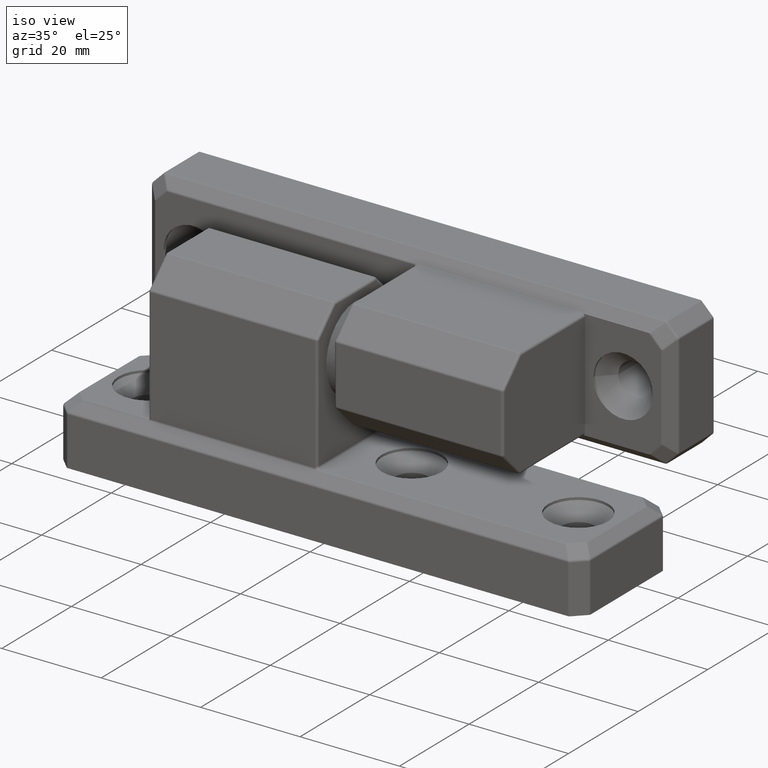
[diagram: clean part render]
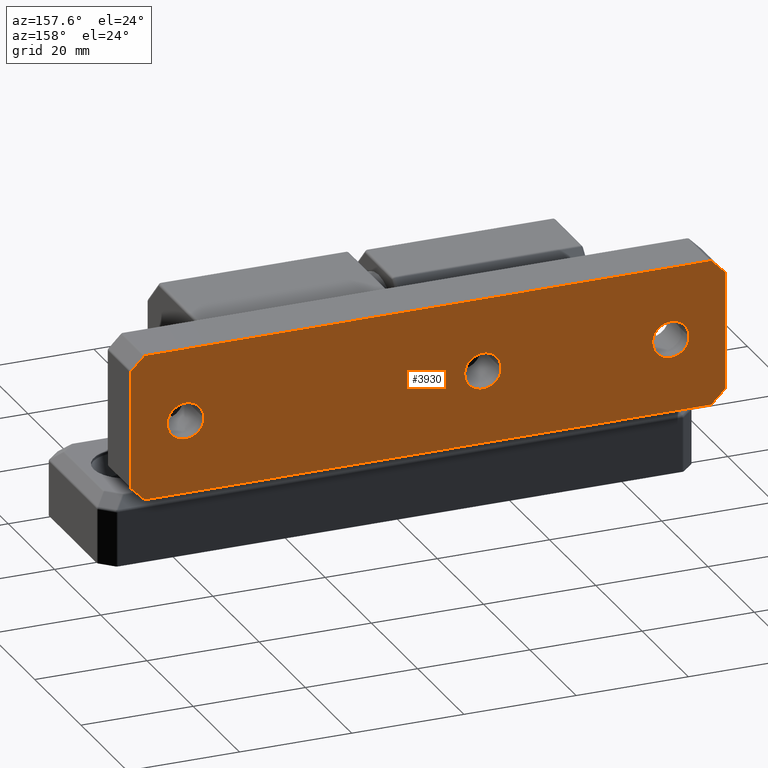
[diagram: tour spotlight — one face highlighted and labeled with its STEP entity id]
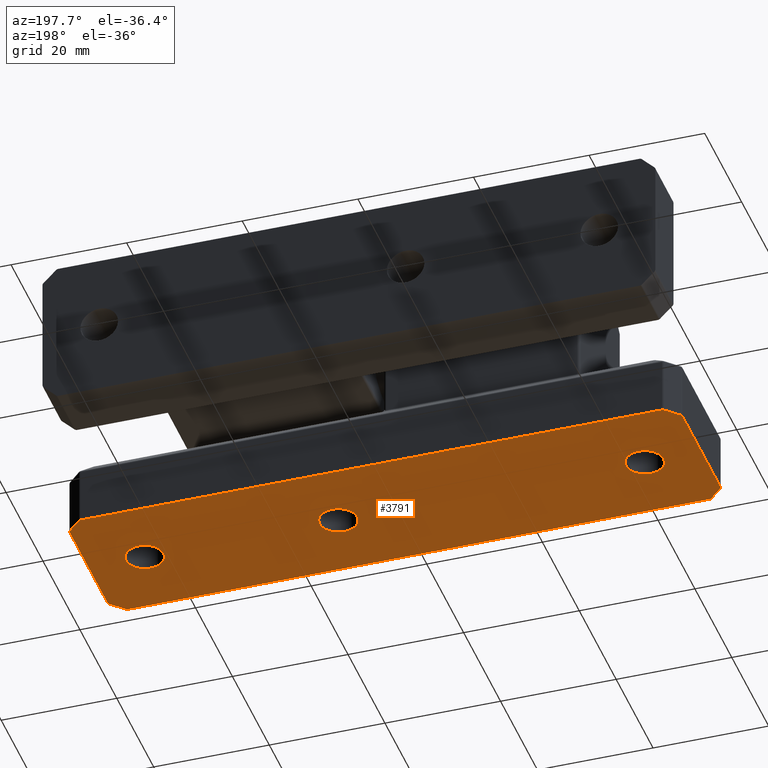
[diagram: tour spotlight — one face highlighted and labeled with its STEP entity id]
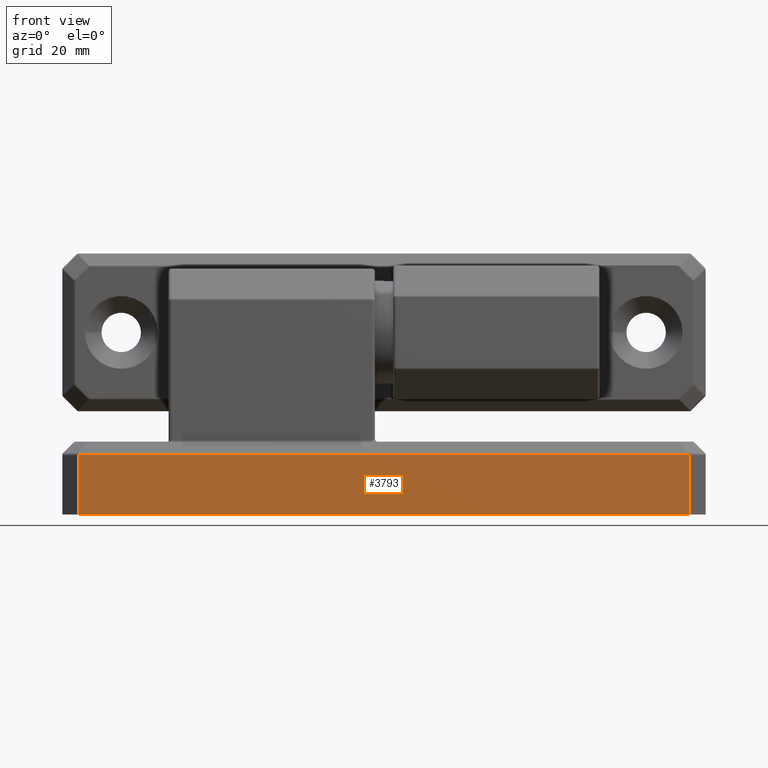
[diagram: tour spotlight — one face highlighted and labeled with its STEP entity id]
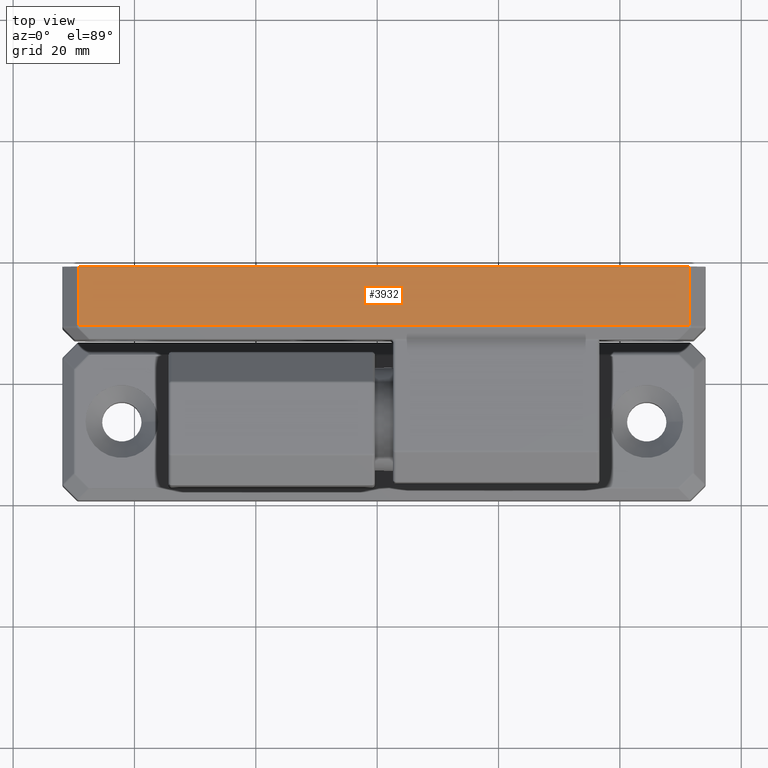
[diagram: tour spotlight — one face highlighted and labeled with its STEP entity id]
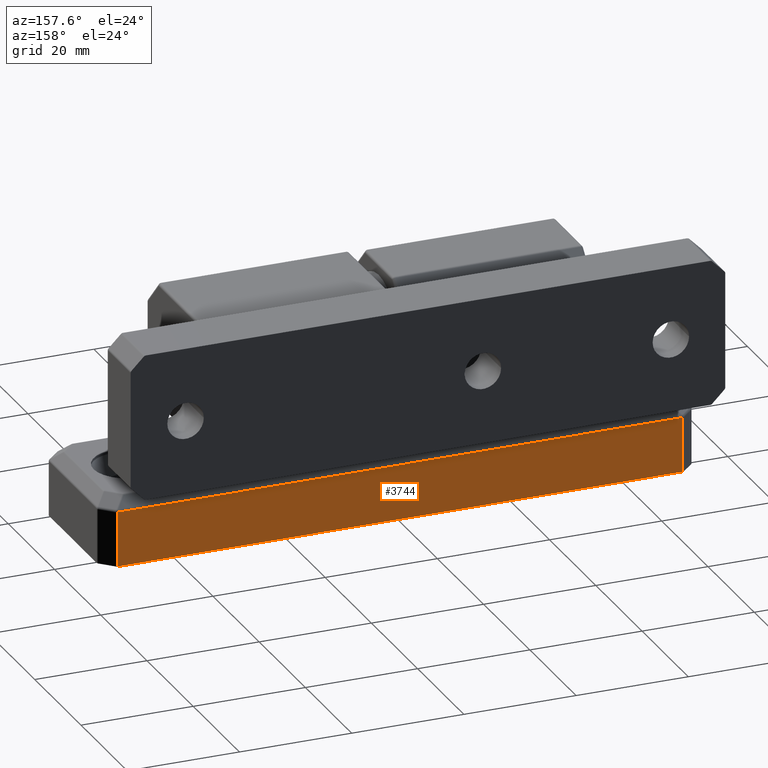
[diagram: tour spotlight — one face highlighted and labeled with its STEP entity id]
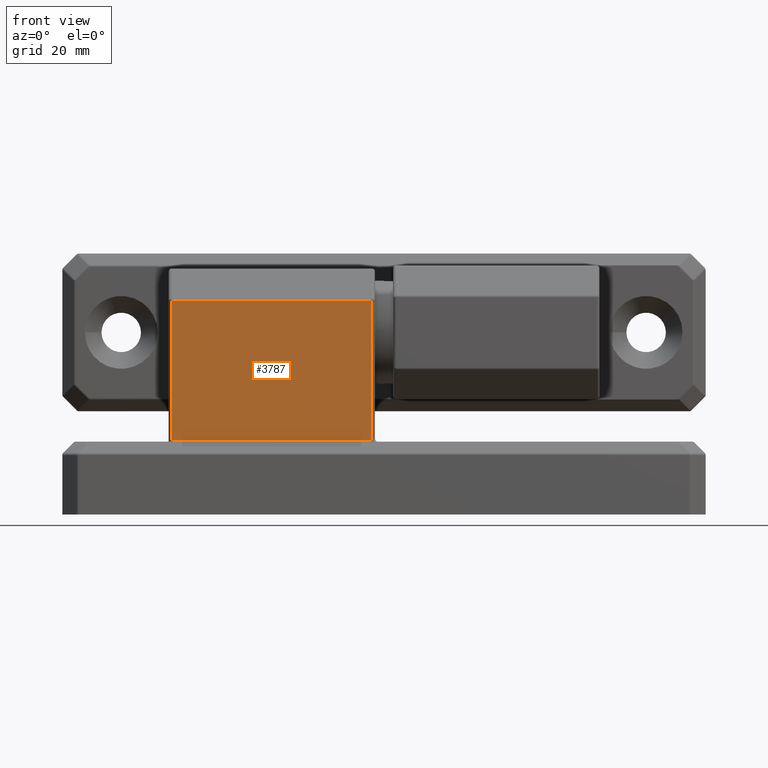
[diagram: tour spotlight — one face highlighted and labeled with its STEP entity id]
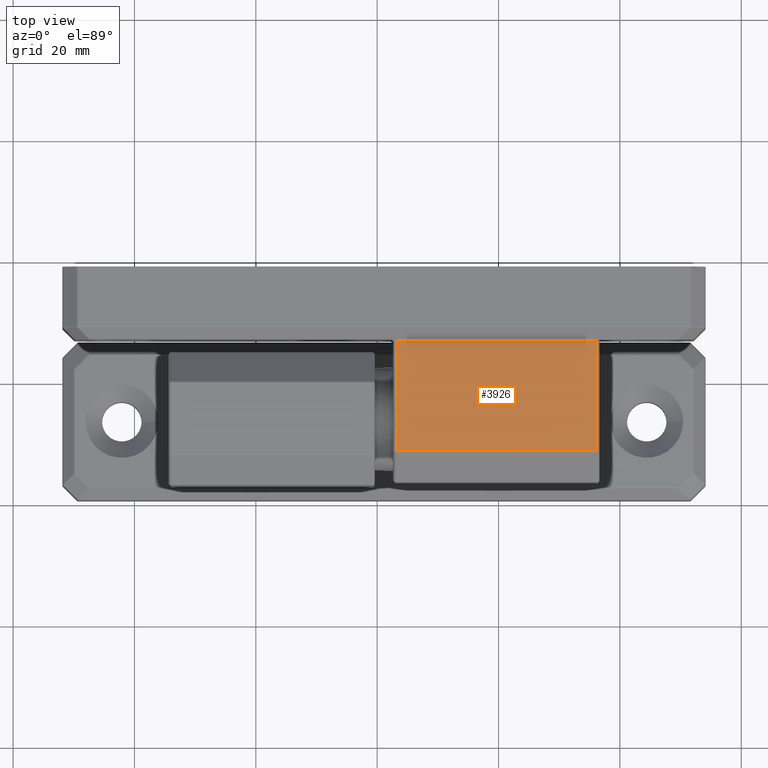
[diagram: tour spotlight — one face highlighted and labeled with its STEP entity id]
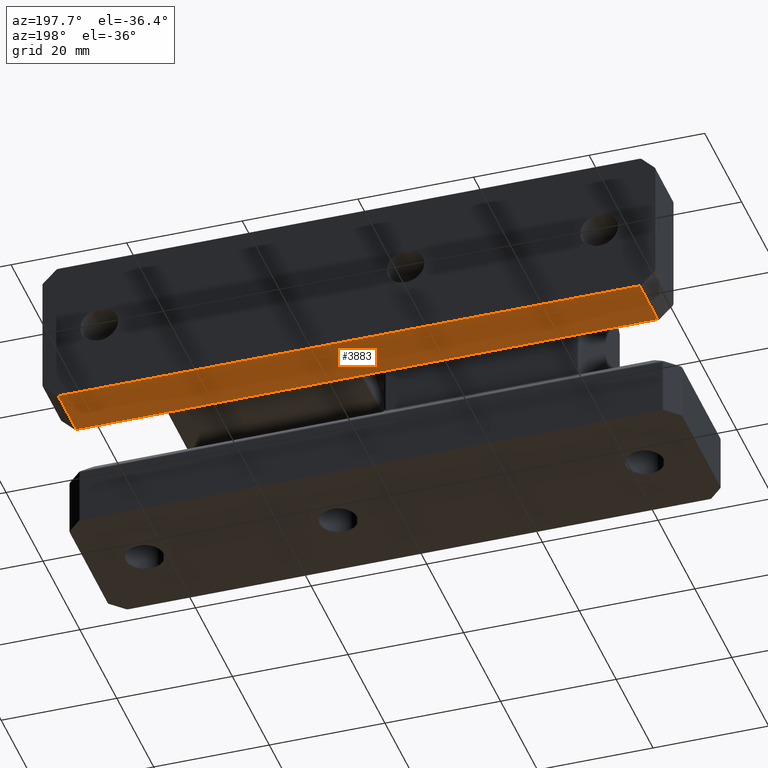
[diagram: tour spotlight — one face highlighted and labeled with its STEP entity id]
A machine part: a face-by-face anatomy tour. The part has 275 B-rep faces; the first image is the clean iso view, then the 8 largest visible faces are spotlighted one at a time (largest first), each with its STEP entity span.

Face 1 — auxiliary view, entity #3930. In plain terms, the highlighted planar face has unit normal (-0, -1, -0).
Definition (entity closure, byte-faithful):
#71=FACE_BOUND('',#1369,.T.);
#72=FACE_BOUND('',#1370,.T.);
#73=FACE_BOUND('',#1371,.T.);
#141=PLANE('',#4462);
#389=LINE('',#6959,#639);
#390=LINE('',#6961,#640);
#391=LINE('',#6963,#641);
#392=LINE('',#6965,#642);
#428=LINE('',#7219,#678);
#429=LINE('',#7222,#679);
#430=LINE('',#7223,#680);
#431=LINE('',#7224,#681);
#639=VECTOR('',#5549,3.12132034355963);
#640=VECTOR('',#5552,20.5857864376269);
#641=VECTOR('',#5555,3.12132034355964);
#642=VECTOR('',#5558,100.585786437627);
#678=VECTOR('',#5758,3.12132034355964);
#679=VECTOR('',#5763,20.5857864376269);
#680=VECTOR('',#5764,3.12132034355965);
#681=VECTOR('',#5765,100.585786437627);
#1069=FACE_OUTER_BOUND('',#1368,.T.);
#1368=EDGE_LOOP('',(#3538,#3539,#3540,#3541,#3542,#3543,#3544,#3545,#3546,
#3547,#3548,#3549,#3550,#3551,#3552,#3553));
#1369=EDGE_LOOP('',(#3554));
#1370=EDGE_LOOP('',(#3555));
#1371=EDGE_LOOP('',(#3556));
#1550=CIRCLE('',#4241,0.5);
#1569=CIRCLE('',#4270,0.5);
#1580=CIRCLE('',#4289,0.5);
#1587=CIRCLE('',#4302,0.5);
#1595=CIRCLE('',#4316,0.5);
#1602=CIRCLE('',#4328,0.5);
#1615=CIRCLE('',#4359,0.5);
#1616=CIRCLE('',#4361,0.5);
#1662=CIRCLE('',#4463,3.25);
#1663=CIRCLE('',#4464,3.25);
#1664=CIRCLE('',#4465,3.25);
#1838=VERTEX_POINT('',#6576);
#1839=VERTEX_POINT('',#6577);
#1858=VERTEX_POINT('',#6633);
#1859=VERTEX_POINT('',#6634);
#1871=VERTEX_POINT('',#6675);
#1872=VERTEX_POINT('',#6676);
#1879=VERTEX_POINT('',#6704);
#1880=VERTEX_POINT('',#6705);
#1888=VERTEX_POINT('',#6735);
#1889=VERTEX_POINT('',#6736);
#1896=VERTEX_POINT('',#6761);
#1897=VERTEX_POINT('',#6762);
#1917=VERTEX_POINT('',#6895);
#1918=VERTEX_POINT('',#6896);
#1919=VERTEX_POINT('',#6901);
#1920=VERTEX_POINT('',#6902);
#1968=VERTEX_POINT('',#7225);
#1969=VERTEX_POINT('',#7227);
#1970=VERTEX_POINT('',#7229);
#2265=EDGE_CURVE('',#1838,#1839,#1550,.T.);
#2292=EDGE_CURVE('',#1858,#1859,#1569,.T.);
#2313=EDGE_CURVE('',#1871,#1872,#1580,.T.);
#2328=EDGE_CURVE('',#1879,#1880,#1587,.T.);
#2344=EDGE_CURVE('',#1888,#1889,#1595,.T.);
#2357=EDGE_CURVE('',#1896,#1897,#1602,.T.);
#2402=EDGE_CURVE('',#1917,#1918,#1615,.T.);
#2405=EDGE_CURVE('',#1919,#1920,#1616,.T.);
#2426=EDGE_CURVE('',#1918,#1888,#389,.T.);
#2427=EDGE_CURVE('',#1897,#1917,#390,.T.);
#2428=EDGE_CURVE('',#1859,#1896,#391,.T.);
#2429=EDGE_CURVE('',#1920,#1858,#392,.T.);
#2508=EDGE_CURVE('',#1839,#1919,#428,.T.);
#2509=EDGE_CURVE('',#1872,#1838,#429,.T.);
#2510=EDGE_CURVE('',#1880,#1871,#430,.T.);
#2511=EDGE_CURVE('',#1889,#1879,#431,.T.);
#2512=EDGE_CURVE('',#1968,#1968,#1662,.T.);
#2513=EDGE_CURVE('',#1969,#1969,#1663,.T.);
#2514=EDGE_CURVE('',#1970,#1970,#1664,.T.);
#3538=ORIENTED_EDGE('',*,*,#2344,.F.);
#3539=ORIENTED_EDGE('',*,*,#2426,.F.);
#3540=ORIENTED_EDGE('',*,*,#2402,.F.);
#3541=ORIENTED_EDGE('',*,*,#2427,.F.);
#3542=ORIENTED_EDGE('',*,*,#2357,.F.);
#3543=ORIENTED_EDGE('',*,*,#2428,.F.);
#3544=ORIENTED_EDGE('',*,*,#2292,.F.);
#3545=ORIENTED_EDGE('',*,*,#2429,.F.);
#3546=ORIENTED_EDGE('',*,*,#2405,.F.);
#3547=ORIENTED_EDGE('',*,*,#2508,.F.);
#3548=ORIENTED_EDGE('',*,*,#2265,.F.);
#3549=ORIENTED_EDGE('',*,*,#2509,.F.);
#3550=ORIENTED_EDGE('',*,*,#2313,.F.);
#3551=ORIENTED_EDGE('',*,*,#2510,.F.);
#3552=ORIENTED_EDGE('',*,*,#2328,.F.);
#3553=ORIENTED_EDGE('',*,*,#2511,.F.);
#3554=ORIENTED_EDGE('',*,*,#2512,.T.);
#3555=ORIENTED_EDGE('',*,*,#2513,.T.);
#3556=ORIENTED_EDGE('',*,*,#2514,.T.);
#3930=ADVANCED_FACE('',(#1069,#71,#72,#73),#141,.F.);
#4241=AXIS2_PLACEMENT_3D('',#6578,#5199,#5200);
#4270=AXIS2_PLACEMENT_3D('',#6635,#5265,#5266);
#4289=AXIS2_PLACEMENT_3D('',#6677,#5313,#5314);
#4302=AXIS2_PLACEMENT_3D('',#6706,#5347,#5348);
#4316=AXIS2_PLACEMENT_3D('',#6737,#5383,#5384);
#4328=AXIS2_PLACEMENT_3D('',#6763,#5413,#5414);
#4359=AXIS2_PLACEMENT_3D('',#6897,#5501,#5502);
#4361=AXIS2_PLACEMENT_3D('',#6903,#5507,#5508);
#4462=AXIS2_PLACEMENT_3D('',#7221,#5761,#5762);
#4463=AXIS2_PLACEMENT_3D('',#7226,#5766,#5767);
#4464=AXIS2_PLACEMENT_3D('',#7228,#5768,#5769);
#4465=AXIS2_PLACEMENT_3D('',#7230,#5770,#5771);
#5199=DIRECTION('center_axis',(0.,0.,1.));
#5200=DIRECTION('ref_axis',(0.923879532511288,0.382683432365087,0.));
#5265=DIRECTION('center_axis',(0.,0.,1.));
#5266=DIRECTION('ref_axis',(-0.382683432365103,0.923879532511281,0.));
#5313=DIRECTION('center_axis',(0.,0.,1.));
#5314=DIRECTION('ref_axis',(0.92387953251129,-0.382683432365083,0.));
#5347=DIRECTION('center_axis',(0.,0.,1.));
#5348=DIRECTION('ref_axis',(0.382683432365087,-0.923879532511288,0.));
#5383=DIRECTION('center_axis',(0.,0.,1.));
#5384=DIRECTION('ref_axis',(-0.382683432365088,-0.923879532511287,0.));
#5413=DIRECTION('center_axis',(0.,0.,1.));
#5414=DIRECTION('ref_axis',(-0.92387953251129,0.382683432365083,0.));
#5501=DIRECTION('center_axis',(0.,0.,1.));
#5502=DIRECTION('ref_axis',(-0.923879532511287,-0.382683432365089,0.));
#5507=DIRECTION('center_axis',(0.,0.,1.));
#5508=DIRECTION('ref_axis',(0.38268343236509,0.923879532511287,0.));
#5549=DIRECTION('',(0.707106781186546,-0.707106781186549,0.));
#5552=DIRECTION('',(3.41607084500048E-16,-1.,0.));
#5555=DIRECTION('',(-0.707106781186548,-0.707106781186548,0.));
#5558=DIRECTION('',(-1.,-1.25685625429263E-16,0.));
#5758=DIRECTION('',(-0.707106781186547,0.707106781186547,0.));
#5761=DIRECTION('center_axis',(0.,0.,1.));
#5762=DIRECTION('ref_axis',(1.,0.,0.));
#5763=DIRECTION('',(0.,1.,0.));
#5764=DIRECTION('',(0.707106781186547,0.707106781186547,0.));
#5765=DIRECTION('',(1.,0.,0.));
#5766=DIRECTION('center_axis',(0.,0.,1.));
#5767=DIRECTION('ref_axis',(1.,0.,0.));
#5768=DIRECTION('center_axis',(0.,0.,1.));
#5769=DIRECTION('ref_axis',(1.,0.,0.));
#5770=DIRECTION('center_axis',(0.,0.,1.));
#5771=DIRECTION('ref_axis',(1.,0.,0.));
#6576=CARTESIAN_POINT('',(53.,10.2928932188135,0.));
#6577=CARTESIAN_POINT('',(52.8535533905933,10.6464466094067,0.));
#6578=CARTESIAN_POINT('Origin',(52.5,10.2928932188135,0.));
#6633=CARTESIAN_POINT('',(-50.2928932188134,13.,0.));
#6634=CARTESIAN_POINT('',(-50.6464466094067,12.8535533905933,0.));
#6635=CARTESIAN_POINT('Origin',(-50.2928932188134,12.5,0.));
#6675=CARTESIAN_POINT('',(52.8535533905933,-10.6464466094067,0.));
#6676=CARTESIAN_POINT('',(53.,-10.2928932188135,0.));
#6677=CARTESIAN_POINT('Origin',(52.5,-10.2928932188135,0.));
#6704=CARTESIAN_POINT('',(50.2928932188135,-13.,0.));
#6705=CARTESIAN_POINT('',(50.6464466094067,-12.8535533905933,0.));
#6706=CARTESIAN_POINT('Origin',(50.2928932188135,-12.5,0.));
#6735=CARTESIAN_POINT('',(-50.6464466094067,-12.8535533905933,0.));
#6736=CARTESIAN_POINT('',(-50.2928932188134,-13.,0.));
#6737=CARTESIAN_POINT('Origin',(-50.2928932188134,-12.5,0.));
#6761=CARTESIAN_POINT('',(-52.8535533905933,10.6464466094067,0.));
#6762=CARTESIAN_POINT('',(-53.,10.2928932188135,0.));
#6763=CARTESIAN_POINT('Origin',(-52.5,10.2928932188135,0.));
#6895=CARTESIAN_POINT('',(-53.,-10.2928932188135,0.));
#6896=CARTESIAN_POINT('',(-52.8535533905933,-10.6464466094067,0.));
#6897=CARTESIAN_POINT('Origin',(-52.5,-10.2928932188135,0.));
#6901=CARTESIAN_POINT('',(50.6464466094068,12.8535533905933,0.));
#6902=CARTESIAN_POINT('',(50.2928932188135,13.,0.));
#6903=CARTESIAN_POINT('Origin',(50.2928932188135,12.5,0.));
#6959=CARTESIAN_POINT('',(-41.75,-21.75,0.));
#6961=CARTESIAN_POINT('',(-53.,13.,0.));
#6963=CARTESIAN_POINT('',(-41.75,21.75,0.));
#6965=CARTESIAN_POINT('',(53.,13.,0.));
#7219=CARTESIAN_POINT('',(41.75,21.75,0.));
#7221=CARTESIAN_POINT('Origin',(2.42230478100034E-14,-2.18680292729197E-16,
0.));
#7222=CARTESIAN_POINT('',(53.,-13.,0.));
#7223=CARTESIAN_POINT('',(41.75,-21.75,0.));
#7224=CARTESIAN_POINT('',(-53.,-13.,0.));
#7225=CARTESIAN_POINT('',(6.55000000000003,-3.9801020972289E-16,0.));
#7226=CARTESIAN_POINT('Origin',(9.80000000000003,0.,0.));
#7227=CARTESIAN_POINT('',(-46.45,-3.9801020972289E-16,0.));
#7228=CARTESIAN_POINT('Origin',(-43.2,0.,0.));
#7229=CARTESIAN_POINT('',(40.05,-3.9801020972289E-16,0.));
#7230=CARTESIAN_POINT('Origin',(43.3,0.,0.));

Face 2 — auxiliary view, entity #3791. In plain terms, the highlighted planar face has unit normal (-0, -0, 1).
Definition (entity closure, byte-faithful):
#49=FACE_BOUND('',#1208,.T.);
#50=FACE_BOUND('',#1209,.T.);
#51=FACE_BOUND('',#1210,.T.);
#110=PLANE('',#4188);
#264=LINE('',#6246,#514);
#265=LINE('',#6248,#515);
#266=LINE('',#6250,#516);
#267=LINE('',#6252,#517);
#303=LINE('',#6492,#553);
#304=LINE('',#6495,#554);
#305=LINE('',#6496,#555);
#306=LINE('',#6497,#556);
#514=VECTOR('',#4876,3.12132034355963);
#515=VECTOR('',#4879,20.5857864376269);
#516=VECTOR('',#4882,3.12132034355964);
#517=VECTOR('',#4885,100.585786437627);
#553=VECTOR('',#5085,3.12132034355964);
#554=VECTOR('',#5090,20.5857864376269);
#555=VECTOR('',#5091,3.12132034355965);
#556=VECTOR('',#5092,100.585786437627);
#930=FACE_OUTER_BOUND('',#1207,.T.);
#1207=EDGE_LOOP('',(#2992,#2993,#2994,#2995,#2996,#2997,#2998,#2999,#3000,
#3001,#3002,#3003,#3004,#3005,#3006,#3007));
#1208=EDGE_LOOP('',(#3008));
#1209=EDGE_LOOP('',(#3009));
#1210=EDGE_LOOP('',(#3010));
#1414=CIRCLE('',#3967,0.5);
#1433=CIRCLE('',#3996,0.5);
#1444=CIRCLE('',#4015,0.5);
#1451=CIRCLE('',#4028,0.5);
#1459=CIRCLE('',#4042,0.5);
#1466=CIRCLE('',#4054,0.5);
#1479=CIRCLE('',#4085,0.5);
#1480=CIRCLE('',#4087,0.5);
#1526=CIRCLE('',#4189,3.25);
#1527=CIRCLE('',#4190,3.25);
#1528=CIRCLE('',#4191,3.25);
#1684=VERTEX_POINT('',#5863);
#1685=VERTEX_POINT('',#5864);
#1704=VERTEX_POINT('',#5920);
#1705=VERTEX_POINT('',#5921);
#1717=VERTEX_POINT('',#5962);
#1718=VERTEX_POINT('',#5963);
#1725=VERTEX_POINT('',#5991);
#1726=VERTEX_POINT('',#5992);
#1734=VERTEX_POINT('',#6022);
#1735=VERTEX_POINT('',#6023);
#1742=VERTEX_POINT('',#6048);
#1743=VERTEX_POINT('',#6049);
#1763=VERTEX_POINT('',#6182);
#1764=VERTEX_POINT('',#6183);
#1765=VERTEX_POINT('',#6188);
#1766=VERTEX_POINT('',#6189);
#1814=VERTEX_POINT('',#6498);
#1815=VERTEX_POINT('',#6500);
#1816=VERTEX_POINT('',#6502);
#1992=EDGE_CURVE('',#1684,#1685,#1414,.T.);
#2019=EDGE_CURVE('',#1704,#1705,#1433,.T.);
#2040=EDGE_CURVE('',#1717,#1718,#1444,.T.);
#2055=EDGE_CURVE('',#1725,#1726,#1451,.T.);
#2071=EDGE_CURVE('',#1734,#1735,#1459,.T.);
#2084=EDGE_CURVE('',#1742,#1743,#1466,.T.);
#2129=EDGE_CURVE('',#1763,#1764,#1479,.T.);
#2132=EDGE_CURVE('',#1765,#1766,#1480,.T.);
#2153=EDGE_CURVE('',#1764,#1734,#264,.T.);
#2154=EDGE_CURVE('',#1743,#1763,#265,.T.);
#2155=EDGE_CURVE('',#1705,#1742,#266,.T.);
#2156=EDGE_CURVE('',#1766,#1704,#267,.T.);
#2235=EDGE_CURVE('',#1685,#1765,#303,.T.);
#2236=EDGE_CURVE('',#1718,#1684,#304,.T.);
#2237=EDGE_CURVE('',#1726,#1717,#305,.T.);
#2238=EDGE_CURVE('',#1735,#1725,#306,.T.);
#2239=EDGE_CURVE('',#1814,#1814,#1526,.T.);
#2240=EDGE_CURVE('',#1815,#1815,#1527,.T.);
#2241=EDGE_CURVE('',#1816,#1816,#1528,.T.);
#2992=ORIENTED_EDGE('',*,*,#2071,.F.);
#2993=ORIENTED_EDGE('',*,*,#2153,.F.);
#2994=ORIENTED_EDGE('',*,*,#2129,.F.);
#2995=ORIENTED_EDGE('',*,*,#2154,.F.);
#2996=ORIENTED_EDGE('',*,*,#2084,.F.);
#2997=ORIENTED_EDGE('',*,*,#2155,.F.);
#2998=ORIENTED_EDGE('',*,*,#2019,.F.);
#2999=ORIENTED_EDGE('',*,*,#2156,.F.);
#3000=ORIENTED_EDGE('',*,*,#2132,.F.);
#3001=ORIENTED_EDGE('',*,*,#2235,.F.);
#3002=ORIENTED_EDGE('',*,*,#1992,.F.);
#3003=ORIENTED_EDGE('',*,*,#2236,.F.);
#3004=ORIENTED_EDGE('',*,*,#2040,.F.);
#3005=ORIENTED_EDGE('',*,*,#2237,.F.);
#3006=ORIENTED_EDGE('',*,*,#2055,.F.);
#3007=ORIENTED_EDGE('',*,*,#2238,.F.);
#3008=ORIENTED_EDGE('',*,*,#2239,.T.);
#3009=ORIENTED_EDGE('',*,*,#2240,.T.);
#3010=ORIENTED_EDGE('',*,*,#2241,.T.);
#3791=ADVANCED_FACE('',(#930,#49,#50,#51),#110,.F.);
#3967=AXIS2_PLACEMENT_3D('',#5865,#4526,#4527);
#3996=AXIS2_PLACEMENT_3D('',#5922,#4592,#4593);
#4015=AXIS2_PLACEMENT_3D('',#5964,#4640,#4641);
#4028=AXIS2_PLACEMENT_3D('',#5993,#4674,#4675);
#4042=AXIS2_PLACEMENT_3D('',#6024,#4710,#4711);
#4054=AXIS2_PLACEMENT_3D('',#6050,#4740,#4741);
#4085=AXIS2_PLACEMENT_3D('',#6184,#4828,#4829);
#4087=AXIS2_PLACEMENT_3D('',#6190,#4834,#4835);
#4188=AXIS2_PLACEMENT_3D('',#6494,#5088,#5089);
#4189=AXIS2_PLACEMENT_3D('',#6499,#5093,#5094);
#4190=AXIS2_PLACEMENT_3D('',#6501,#5095,#5096);
#4191=AXIS2_PLACEMENT_3D('',#6503,#5097,#5098);
#4526=DIRECTION('center_axis',(0.,0.,1.));
#4527=DIRECTION('ref_axis',(0.923879532511288,0.382683432365087,0.));
#4592=DIRECTION('center_axis',(0.,0.,1.));
#4593=DIRECTION('ref_axis',(-0.382683432365103,0.923879532511281,0.));
#4640=DIRECTION('center_axis',(0.,0.,1.));
#4641=DIRECTION('ref_axis',(0.92387953251129,-0.382683432365083,0.));
#4674=DIRECTION('center_axis',(0.,0.,1.));
#4675=DIRECTION('ref_axis',(0.382683432365087,-0.923879532511288,0.));
#4710=DIRECTION('center_axis',(0.,0.,1.));
#4711=DIRECTION('ref_axis',(-0.382683432365088,-0.923879532511287,0.));
#4740=DIRECTION('center_axis',(0.,0.,1.));
#4741=DIRECTION('ref_axis',(-0.92387953251129,0.382683432365083,0.));
#4828=DIRECTION('center_axis',(0.,0.,1.));
#4829=DIRECTION('ref_axis',(-0.923879532511287,-0.382683432365089,0.));
#4834=DIRECTION('center_axis',(0.,0.,1.));
#4835=DIRECTION('ref_axis',(0.38268343236509,0.923879532511287,0.));
#4876=DIRECTION('',(0.707106781186546,-0.707106781186549,0.));
#4879=DIRECTION('',(3.41607084500048E-16,-1.,0.));
#4882=DIRECTION('',(-0.707106781186548,-0.707106781186548,0.));
#4885=DIRECTION('',(-1.,-1.25685625429263E-16,0.));
#5085=DIRECTION('',(-0.707106781186547,0.707106781186547,0.));
#5088=DIRECTION('center_axis',(0.,0.,1.));
#5089=DIRECTION('ref_axis',(1.,0.,0.));
#5090=DIRECTION('',(0.,1.,0.));
#5091=DIRECTION('',(0.707106781186547,0.707106781186547,0.));
#5092=DIRECTION('',(1.,0.,0.));
#5093=DIRECTION('center_axis',(0.,0.,1.));
#5094=DIRECTION('ref_axis',(1.,0.,0.));
#5095=DIRECTION('center_axis',(0.,0.,1.));
#5096=DIRECTION('ref_axis',(1.,0.,0.));
#5097=DIRECTION('center_axis',(0.,0.,1.));
#5098=DIRECTION('ref_axis',(1.,0.,0.));
#5863=CARTESIAN_POINT('',(53.,10.2928932188135,0.));
#5864=CARTESIAN_POINT('',(52.8535533905933,10.6464466094067,0.));
#5865=CARTESIAN_POINT('Origin',(52.5,10.2928932188135,0.));
#5920=CARTESIAN_POINT('',(-50.2928932188134,13.,0.));
#5921=CARTESIAN_POINT('',(-50.6464466094067,12.8535533905933,0.));
#5922=CARTESIAN_POINT('Origin',(-50.2928932188134,12.5,0.));
#5962=CARTESIAN_POINT('',(52.8535533905933,-10.6464466094067,0.));
#5963=CARTESIAN_POINT('',(53.,-10.2928932188135,0.));
#5964=CARTESIAN_POINT('Origin',(52.5,-10.2928932188135,0.));
#5991=CARTESIAN_POINT('',(50.2928932188135,-13.,0.));
#5992=CARTESIAN_POINT('',(50.6464466094067,-12.8535533905933,0.));
#5993=CARTESIAN_POINT('Origin',(50.2928932188135,-12.5,0.));
#6022=CARTESIAN_POINT('',(-50.6464466094067,-12.8535533905933,0.));
#6023=CARTESIAN_POINT('',(-50.2928932188134,-13.,0.));
#6024=CARTESIAN_POINT('Origin',(-50.2928932188134,-12.5,0.));
#6048=CARTESIAN_POINT('',(-52.8535533905933,10.6464466094067,0.));
#6049=CARTESIAN_POINT('',(-53.,10.2928932188135,0.));
#6050=CARTESIAN_POINT('Origin',(-52.5,10.2928932188135,0.));
#6182=CARTESIAN_POINT('',(-53.,-10.2928932188135,0.));
#6183=CARTESIAN_POINT('',(-52.8535533905933,-10.6464466094067,0.));
#6184=CARTESIAN_POINT('Origin',(-52.5,-10.2928932188135,0.));
#6188=CARTESIAN_POINT('',(50.6464466094068,12.8535533905933,0.));
#6189=CARTESIAN_POINT('',(50.2928932188135,13.,0.));
#6190=CARTESIAN_POINT('Origin',(50.2928932188135,12.5,0.));
#6246=CARTESIAN_POINT('',(-41.75,-21.75,0.));
#6248=CARTESIAN_POINT('',(-53.,13.,0.));
#6250=CARTESIAN_POINT('',(-41.75,21.75,0.));
#6252=CARTESIAN_POINT('',(53.,13.,0.));
#6492=CARTESIAN_POINT('',(41.75,21.75,0.));
#6494=CARTESIAN_POINT('Origin',(2.42230478100034E-14,-2.18680292729197E-16,
0.));
#6495=CARTESIAN_POINT('',(53.,-13.,0.));
#6496=CARTESIAN_POINT('',(41.75,-21.75,0.));
#6497=CARTESIAN_POINT('',(-53.,-13.,0.));
#6498=CARTESIAN_POINT('',(6.55000000000003,-3.9801020972289E-16,0.));
#6499=CARTESIAN_POINT('Origin',(9.80000000000003,0.,0.));
#6500=CARTESIAN_POINT('',(-46.45,-3.9801020972289E-16,0.));
#6501=CARTESIAN_POINT('Origin',(-43.2,0.,0.));
#6502=CARTESIAN_POINT('',(40.05,-3.9801020972289E-16,0.));
#6503=CARTESIAN_POINT('Origin',(43.3,0.,0.));

Face 3 — front view, entity #3793. In plain terms, the highlighted planar face has unit normal (-0, -1, -0).
Definition (entity closure, byte-faithful):
#112=PLANE('',#4193);
#206=LINE('',#5985,#456);
#211=LINE('',#5995,#461);
#214=LINE('',#6016,#464);
#217=LINE('',#6020,#467);
#218=LINE('',#6025,#468);
#306=LINE('',#6497,#556);
#456=VECTOR('',#4666,0.059159953037593);
#461=VECTOR('',#4677,9.76643608350591);
#464=VECTOR('',#4702,0.0591599530376567);
#467=VECTOR('',#4707,100.479957896397);
#468=VECTOR('',#4712,9.76643608350588);
#556=VECTOR('',#5092,100.585786437627);
#932=FACE_OUTER_BOUND('',#1212,.T.);
#1212=EDGE_LOOP('',(#3015,#3016,#3017,#3018,#3019,#3020));
#1720=VERTEX_POINT('',#5972);
#1722=VERTEX_POINT('',#5978);
#1725=VERTEX_POINT('',#5991);
#1730=VERTEX_POINT('',#6005);
#1731=VERTEX_POINT('',#6009);
#1735=VERTEX_POINT('',#6023);
#2051=EDGE_CURVE('',#1720,#1722,#206,.T.);
#2057=EDGE_CURVE('',#1722,#1725,#211,.T.);
#2067=EDGE_CURVE('',#1730,#1731,#214,.T.);
#2070=EDGE_CURVE('',#1731,#1720,#217,.T.);
#2072=EDGE_CURVE('',#1735,#1730,#218,.T.);
#2238=EDGE_CURVE('',#1735,#1725,#306,.T.);
#3015=ORIENTED_EDGE('',*,*,#2072,.F.);
#3016=ORIENTED_EDGE('',*,*,#2238,.T.);
#3017=ORIENTED_EDGE('',*,*,#2057,.F.);
#3018=ORIENTED_EDGE('',*,*,#2051,.F.);
#3019=ORIENTED_EDGE('',*,*,#2070,.F.);
#3020=ORIENTED_EDGE('',*,*,#2067,.F.);
#3793=ADVANCED_FACE('',(#932),#112,.T.);
#4193=AXIS2_PLACEMENT_3D('',#6505,#5101,#5102);
#4666=DIRECTION('',(0.894427190999916,0.,-0.447213595499958));
#4677=DIRECTION('',(0.,0.,-1.));
#4702=DIRECTION('',(0.894427190999917,0.,0.447213595499955));
#4707=DIRECTION('',(1.,0.,0.));
#4712=DIRECTION('',(0.,0.,1.));
#5092=DIRECTION('',(1.,0.,0.));
#5101=DIRECTION('center_axis',(0.,-1.,0.));
#5102=DIRECTION('ref_axis',(1.,0.,0.));
#5972=CARTESIAN_POINT('',(50.2399789481984,-13.,9.79289321881346));
#5978=CARTESIAN_POINT('',(50.2928932188135,-13.,9.76643608350591));
#5985=CARTESIAN_POINT('',(2.96515307716505,-13.,33.4303061543301));
#5991=CARTESIAN_POINT('',(50.2928932188135,-13.,0.));
#5995=CARTESIAN_POINT('',(50.2928932188135,-13.,0.));
#6005=CARTESIAN_POINT('',(-50.2928932188134,-13.,9.76643608350588));
#6009=CARTESIAN_POINT('',(-50.2399789481983,-13.,9.79289321881346));
#6016=CARTESIAN_POINT('',(-49.365153077165,-13.,10.2303061543301));
#6020=CARTESIAN_POINT('',(-39.75,-13.,9.79289321881345));
#6023=CARTESIAN_POINT('',(-50.2928932188134,-13.,0.));
#6025=CARTESIAN_POINT('',(-50.2928932188134,-13.,0.));
#6497=CARTESIAN_POINT('',(-53.,-13.,0.));
#6505=CARTESIAN_POINT('Origin',(-53.,-13.,0.));

Face 4 — top view, entity #3932. In plain terms, the highlighted planar face has unit normal (0, -0, 1).
Definition (entity closure, byte-faithful):
#143=PLANE('',#4467);
#331=LINE('',#6698,#581);
#336=LINE('',#6708,#586);
#339=LINE('',#6729,#589);
#342=LINE('',#6733,#592);
#343=LINE('',#6738,#593);
#431=LINE('',#7224,#681);
#581=VECTOR('',#5339,0.059159953037593);
#586=VECTOR('',#5350,9.76643608350591);
#589=VECTOR('',#5375,0.0591599530376567);
#592=VECTOR('',#5380,100.479957896397);
#593=VECTOR('',#5385,9.76643608350588);
#681=VECTOR('',#5765,100.585786437627);
#1071=FACE_OUTER_BOUND('',#1373,.T.);
#1373=EDGE_LOOP('',(#3561,#3562,#3563,#3564,#3565,#3566));
#1874=VERTEX_POINT('',#6685);
#1876=VERTEX_POINT('',#6691);
#1879=VERTEX_POINT('',#6704);
#1884=VERTEX_POINT('',#6718);
#1885=VERTEX_POINT('',#6722);
#1889=VERTEX_POINT('',#6736);
#2324=EDGE_CURVE('',#1874,#1876,#331,.T.);
#2330=EDGE_CURVE('',#1876,#1879,#336,.T.);
#2340=EDGE_CURVE('',#1884,#1885,#339,.T.);
#2343=EDGE_CURVE('',#1885,#1874,#342,.T.);
#2345=EDGE_CURVE('',#1889,#1884,#343,.T.);
#2511=EDGE_CURVE('',#1889,#1879,#431,.T.);
#3561=ORIENTED_EDGE('',*,*,#2345,.F.);
#3562=ORIENTED_EDGE('',*,*,#2511,.T.);
#3563=ORIENTED_EDGE('',*,*,#2330,.F.);
#3564=ORIENTED_EDGE('',*,*,#2324,.F.);
#3565=ORIENTED_EDGE('',*,*,#2343,.F.);
#3566=ORIENTED_EDGE('',*,*,#2340,.F.);
#3932=ADVANCED_FACE('',(#1071),#143,.T.);
#4467=AXIS2_PLACEMENT_3D('',#7232,#5774,#5775);
#5339=DIRECTION('',(0.894427190999916,0.,-0.447213595499958));
#5350=DIRECTION('',(0.,0.,-1.));
#5375=DIRECTION('',(0.894427190999917,0.,0.447213595499955));
#5380=DIRECTION('',(1.,0.,0.));
#5385=DIRECTION('',(0.,0.,1.));
#5765=DIRECTION('',(1.,0.,0.));
#5774=DIRECTION('center_axis',(0.,-1.,0.));
#5775=DIRECTION('ref_axis',(1.,0.,0.));
#6685=CARTESIAN_POINT('',(50.2399789481984,-13.,9.79289321881346));
#6691=CARTESIAN_POINT('',(50.2928932188135,-13.,9.76643608350591));
#6698=CARTESIAN_POINT('',(2.96515307716505,-13.,33.4303061543301));
#6704=CARTESIAN_POINT('',(50.2928932188135,-13.,0.));
#6708=CARTESIAN_POINT('',(50.2928932188135,-13.,0.));
#6718=CARTESIAN_POINT('',(-50.2928932188134,-13.,9.76643608350588));
#6722=CARTESIAN_POINT('',(-50.2399789481983,-13.,9.79289321881346));
#6729=CARTESIAN_POINT('',(-49.365153077165,-13.,10.2303061543301));
#6733=CARTESIAN_POINT('',(-39.75,-13.,9.79289321881345));
#6736=CARTESIAN_POINT('',(-50.2928932188134,-13.,0.));
#6738=CARTESIAN_POINT('',(-50.2928932188134,-13.,0.));
#7224=CARTESIAN_POINT('',(-53.,-13.,0.));
#7232=CARTESIAN_POINT('Origin',(-53.,-13.,0.));

Face 5 — auxiliary view, entity #3744. In plain terms, the highlighted planar face has unit normal (0, 1, 0).
Definition (entity closure, byte-faithful):
#95=PLANE('',#4104);
#186=LINE('',#5883,#436);
#190=LINE('',#5917,#440);
#193=LINE('',#5924,#443);
#195=LINE('',#5927,#445);
#252=LINE('',#6191,#502);
#267=LINE('',#6252,#517);
#436=VECTOR('',#4548,0.059159953037625);
#440=VECTOR('',#4588,0.0591599530376197);
#443=VECTOR('',#4595,9.76643608350591);
#445=VECTOR('',#4599,100.479957896397);
#502=VECTOR('',#4836,9.76643608350589);
#517=VECTOR('',#4885,100.585786437627);
#883=FACE_OUTER_BOUND('',#1159,.T.);
#1159=EDGE_LOOP('',(#2790,#2791,#2792,#2793,#2794,#2795));
#1688=VERTEX_POINT('',#5872);
#1689=VERTEX_POINT('',#5876);
#1700=VERTEX_POINT('',#5906);
#1701=VERTEX_POINT('',#5910);
#1704=VERTEX_POINT('',#5920);
#1766=VERTEX_POINT('',#6189);
#2001=EDGE_CURVE('',#1688,#1689,#186,.T.);
#2017=EDGE_CURVE('',#1700,#1701,#190,.T.);
#2021=EDGE_CURVE('',#1701,#1704,#193,.T.);
#2023=EDGE_CURVE('',#1689,#1700,#195,.T.);
#2133=EDGE_CURVE('',#1766,#1688,#252,.T.);
#2156=EDGE_CURVE('',#1766,#1704,#267,.T.);
#2790=ORIENTED_EDGE('',*,*,#2021,.F.);
#2791=ORIENTED_EDGE('',*,*,#2017,.F.);
#2792=ORIENTED_EDGE('',*,*,#2023,.F.);
#2793=ORIENTED_EDGE('',*,*,#2001,.F.);
#2794=ORIENTED_EDGE('',*,*,#2133,.F.);
#2795=ORIENTED_EDGE('',*,*,#2156,.T.);
#3744=ADVANCED_FACE('',(#883),#95,.T.);
#4104=AXIS2_PLACEMENT_3D('',#6251,#4883,#4884);
#4548=DIRECTION('',(-0.894427190999917,-1.12416640901763E-16,0.447213595499956));
#4588=DIRECTION('',(-0.894427190999916,-1.12416640901763E-16,-0.447213595499958));
#4595=DIRECTION('',(0.,0.,-1.));
#4599=DIRECTION('',(-1.,-1.25685625429263E-16,0.));
#4836=DIRECTION('',(0.,0.,1.));
#4883=DIRECTION('center_axis',(-1.25685625429263E-16,1.,0.));
#4884=DIRECTION('ref_axis',(-1.,-1.77635683940025E-16,0.));
#4885=DIRECTION('',(-1.,-1.25685625429263E-16,0.));
#5872=CARTESIAN_POINT('',(50.2928932188135,13.,9.76643608350589));
#5876=CARTESIAN_POINT('',(50.2399789481983,13.,9.79289321881345));
#5883=CARTESIAN_POINT('',(49.3651530771651,13.,10.2303061543301));
#5906=CARTESIAN_POINT('',(-50.2399789481983,13.,9.79289321881346));
#5910=CARTESIAN_POINT('',(-50.2928932188134,13.,9.76643608350591));
#5917=CARTESIAN_POINT('',(-2.96515307716502,13.,33.4303061543301));
#5920=CARTESIAN_POINT('',(-50.2928932188134,13.,0.));
#5924=CARTESIAN_POINT('',(-50.2928932188134,13.,0.));
#5927=CARTESIAN_POINT('',(39.75,13.,9.79289321881346));
#6189=CARTESIAN_POINT('',(50.2928932188135,13.,0.));
#6191=CARTESIAN_POINT('',(50.2928932188135,13.,0.));
#6251=CARTESIAN_POINT('Origin',(53.,13.,0.));
#6252=CARTESIAN_POINT('',(53.,13.,0.));

Face 6 — front view, entity #3787. In plain terms, the highlighted planar face has unit normal (-0, -1, -0).
Definition (entity closure, byte-faithful):
#106=PLANE('',#4183);
#262=LINE('',#6241,#512);
#269=LINE('',#6307,#519);
#271=LINE('',#6313,#521);
#294=LINE('',#6423,#544);
#512=VECTOR('',#4868,33.);
#519=VECTOR('',#4955,23.0857864376269);
#521=VECTOR('',#4961,33.);
#544=VECTOR('',#5050,23.0857864376269);
#926=FACE_OUTER_BOUND('',#1202,.T.);
#1202=EDGE_LOOP('',(#2972,#2973,#2974,#2975));
#1774=VERTEX_POINT('',#6238);
#1775=VERTEX_POINT('',#6240);
#1793=VERTEX_POINT('',#6298);
#1795=VERTEX_POINT('',#6309);
#2150=EDGE_CURVE('',#1774,#1775,#262,.T.);
#2178=EDGE_CURVE('',#1775,#1793,#269,.T.);
#2181=EDGE_CURVE('',#1793,#1795,#271,.T.);
#2219=EDGE_CURVE('',#1795,#1774,#294,.T.);
#2972=ORIENTED_EDGE('',*,*,#2178,.F.);
#2973=ORIENTED_EDGE('',*,*,#2150,.F.);
#2974=ORIENTED_EDGE('',*,*,#2219,.F.);
#2975=ORIENTED_EDGE('',*,*,#2181,.F.);
#3787=ADVANCED_FACE('',(#926),#106,.T.);
#4183=AXIS2_PLACEMENT_3D('',#6487,#5077,#5078);
#4868=DIRECTION('',(-1.,-3.41607084500048E-16,-3.41607084500048E-16));
#4955=DIRECTION('',(3.79260050587023E-33,1.29557920148374E-48,1.));
#4961=DIRECTION('',(1.,3.41607084500048E-16,0.));
#5050=DIRECTION('',(0.,0.,-1.));
#5077=DIRECTION('center_axis',(3.41607084500048E-16,-1.,0.));
#5078=DIRECTION('ref_axis',(0.,0.,-1.));
#6238=CARTESIAN_POINT('',(-1.99999999999998,-11.,12.2071067811866));
#6240=CARTESIAN_POINT('',(-35.,-11.,12.2071067811866));
#6241=CARTESIAN_POINT('',(-31.,-11.,12.2071067811866));
#6298=CARTESIAN_POINT('',(-35.,-11.,35.2928932188134));
#6307=CARTESIAN_POINT('',(-35.,-11.,30.3818961517101));
#6309=CARTESIAN_POINT('',(-1.99999999999998,-11.,35.2928932188134));
#6313=CARTESIAN_POINT('',(-35.5,-11.,35.2928932188134));
#6423=CARTESIAN_POINT('',(-1.99999999999998,-11.,30.3818961517101));
#6487=CARTESIAN_POINT('Origin',(-35.5,-11.,35.5));

Face 7 — top view, entity #3926. In plain terms, the highlighted planar face has unit normal (0, 0, 1).
Definition (entity closure, byte-faithful):
#137=PLANE('',#4457);
#387=LINE('',#6954,#637);
#394=LINE('',#7020,#644);
#396=LINE('',#7026,#646);
#419=LINE('',#7143,#669);
#637=VECTOR('',#5541,33.);
#644=VECTOR('',#5628,18.0857864376269);
#646=VECTOR('',#5634,33.);
#669=VECTOR('',#5723,18.0857864376269);
#1065=FACE_OUTER_BOUND('',#1363,.T.);
#1363=EDGE_LOOP('',(#3518,#3519,#3520,#3521));
#1928=VERTEX_POINT('',#6951);
#1929=VERTEX_POINT('',#6953);
#1947=VERTEX_POINT('',#7011);
#1949=VERTEX_POINT('',#7022);
#2423=EDGE_CURVE('',#1928,#1929,#387,.T.);
#2451=EDGE_CURVE('',#1929,#1947,#394,.T.);
#2454=EDGE_CURVE('',#1947,#1949,#396,.T.);
#2492=EDGE_CURVE('',#1949,#1928,#419,.T.);
#3518=ORIENTED_EDGE('',*,*,#2451,.F.);
#3519=ORIENTED_EDGE('',*,*,#2423,.F.);
#3520=ORIENTED_EDGE('',*,*,#2492,.F.);
#3521=ORIENTED_EDGE('',*,*,#2454,.F.);
#3926=ADVANCED_FACE('',(#1065),#137,.T.);
#4457=AXIS2_PLACEMENT_3D('',#7214,#5750,#5751);
#5541=DIRECTION('',(-1.,-3.41607084500048E-16,-3.41607084500048E-16));
#5628=DIRECTION('',(8.20021730998973E-32,-2.40048221540574E-16,1.));
#5634=DIRECTION('',(1.,3.41607084500048E-16,1.18352910838245E-47));
#5723=DIRECTION('',(-8.20021730998973E-32,2.40048221540574E-16,-1.));
#5750=DIRECTION('center_axis',(3.41607084500048E-16,-1.,-2.40048221540574E-16));
#5751=DIRECTION('ref_axis',(0.,1.77635683940025E-16,-1.));
#6951=CARTESIAN_POINT('',(-1.99999999999998,-11.,12.2071067811866));
#6953=CARTESIAN_POINT('',(-35.,-11.,12.2071067811866));
#6954=CARTESIAN_POINT('',(-31.,-11.,12.2071067811866));
#7011=CARTESIAN_POINT('',(-35.,-11.,30.2928932188135));
#7020=CARTESIAN_POINT('',(-35.,-11.,26.6599820338637));
#7022=CARTESIAN_POINT('',(-1.99999999999998,-11.,30.2928932188135));
#7026=CARTESIAN_POINT('',(-35.5,-11.,30.2928932188135));
#7143=CARTESIAN_POINT('',(-1.99999999999998,-11.,26.6599820338637));
#7214=CARTESIAN_POINT('Origin',(-35.5,-11.,30.5));

Face 8 — auxiliary view, entity #3883. In plain terms, the highlighted planar face has unit normal (-0, 0, -1).
Definition (entity closure, byte-faithful):
#126=PLANE('',#4378);
#311=LINE('',#6596,#561);
#315=LINE('',#6630,#565);
#318=LINE('',#6637,#568);
#320=LINE('',#6640,#570);
#377=LINE('',#6904,#627);
#392=LINE('',#6965,#642);
#561=VECTOR('',#5221,0.059159953037625);
#565=VECTOR('',#5261,0.0591599530376197);
#568=VECTOR('',#5268,9.76643608350591);
#570=VECTOR('',#5272,100.479957896397);
#627=VECTOR('',#5509,9.76643608350589);
#642=VECTOR('',#5558,100.585786437627);
#1022=FACE_OUTER_BOUND('',#1320,.T.);
#1320=EDGE_LOOP('',(#3336,#3337,#3338,#3339,#3340,#3341));
#1842=VERTEX_POINT('',#6585);
#1843=VERTEX_POINT('',#6589);
#1854=VERTEX_POINT('',#6619);
#1855=VERTEX_POINT('',#6623);
#1858=VERTEX_POINT('',#6633);
#1920=VERTEX_POINT('',#6902);
#2274=EDGE_CURVE('',#1842,#1843,#311,.T.);
#2290=EDGE_CURVE('',#1854,#1855,#315,.T.);
#2294=EDGE_CURVE('',#1855,#1858,#318,.T.);
#2296=EDGE_CURVE('',#1843,#1854,#320,.T.);
#2406=EDGE_CURVE('',#1920,#1842,#377,.T.);
#2429=EDGE_CURVE('',#1920,#1858,#392,.T.);
#3336=ORIENTED_EDGE('',*,*,#2294,.F.);
#3337=ORIENTED_EDGE('',*,*,#2290,.F.);
#3338=ORIENTED_EDGE('',*,*,#2296,.F.);
#3339=ORIENTED_EDGE('',*,*,#2274,.F.);
#3340=ORIENTED_EDGE('',*,*,#2406,.F.);
#3341=ORIENTED_EDGE('',*,*,#2429,.T.);
#3883=ADVANCED_FACE('',(#1022),#126,.T.);
#4378=AXIS2_PLACEMENT_3D('',#6964,#5556,#5557);
#5221=DIRECTION('',(-0.894427190999917,-1.12416640901763E-16,0.447213595499956));
#5261=DIRECTION('',(-0.894427190999916,-1.12416640901763E-16,-0.447213595499958));
#5268=DIRECTION('',(0.,0.,-1.));
#5272=DIRECTION('',(-1.,-1.25685625429263E-16,0.));
#5509=DIRECTION('',(0.,0.,1.));
#5556=DIRECTION('center_axis',(-1.25685625429263E-16,1.,0.));
#5557=DIRECTION('ref_axis',(-1.,-1.77635683940025E-16,0.));
#5558=DIRECTION('',(-1.,-1.25685625429263E-16,0.));
#6585=CARTESIAN_POINT('',(50.2928932188135,13.,9.76643608350589));
#6589=CARTESIAN_POINT('',(50.2399789481983,13.,9.79289321881345));
#6596=CARTESIAN_POINT('',(49.3651530771651,13.,10.2303061543301));
#6619=CARTESIAN_POINT('',(-50.2399789481983,13.,9.79289321881346));
#6623=CARTESIAN_POINT('',(-50.2928932188134,13.,9.76643608350591));
#6630=CARTESIAN_POINT('',(-2.96515307716502,13.,33.4303061543301));
#6633=CARTESIAN_POINT('',(-50.2928932188134,13.,0.));
#6637=CARTESIAN_POINT('',(-50.2928932188134,13.,0.));
#6640=CARTESIAN_POINT('',(39.75,13.,9.79289321881346));
#6902=CARTESIAN_POINT('',(50.2928932188135,13.,0.));
#6904=CARTESIAN_POINT('',(50.2928932188135,13.,0.));
#6964=CARTESIAN_POINT('Origin',(53.,13.,0.));
#6965=CARTESIAN_POINT('',(53.,13.,0.));